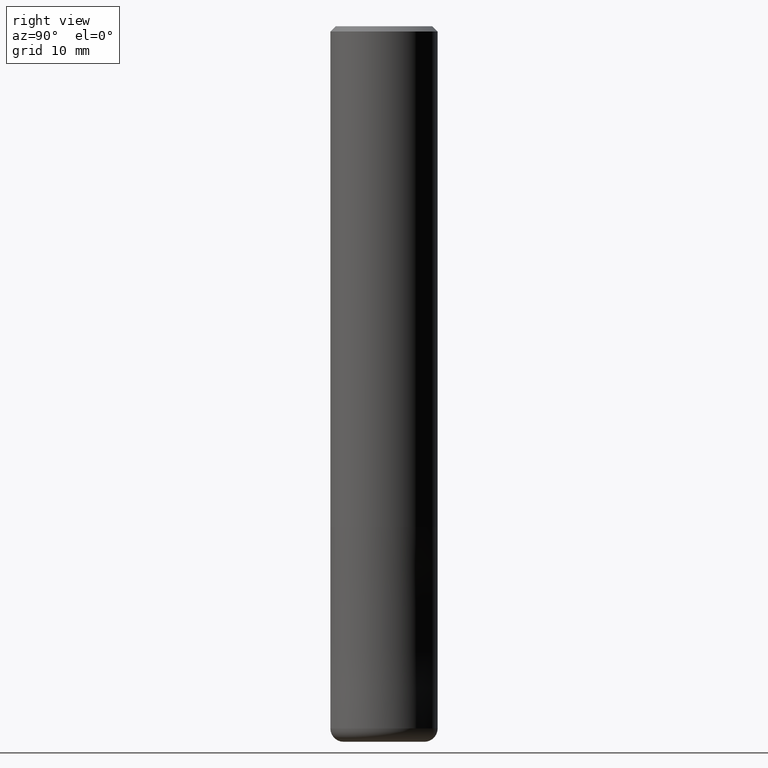
[diagram: clean part render]
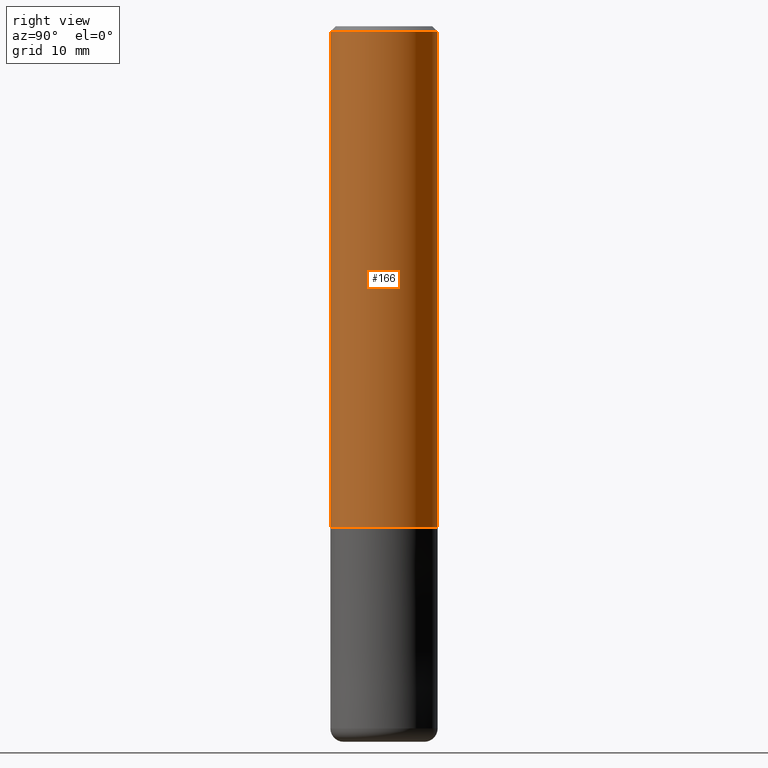
[diagram: same view with one face highlighted and labeled with its STEP entity id]
A machine part, right view. The second image highlights one B-rep face of the part: STEP entity #166.
In plain terms, the highlighted cylindrical surface (partial cylindrical patch) has radius 6 mm, axis along (-0, -0, 1).
Its self-contained STEP definition (entity closure, byte-faithful):
#110=EDGE_CURVE('',#244,#208,#271,.T.);
#138=VERTEX_POINT('',#301);
#160=EDGE_CURVE('',#244,#138,#324,.T.);
#162=EDGE_CURVE('',#202,#208,#326,.T.);
#166=ADVANCED_FACE('',(#331),#332,.T.);
#202=VERTEX_POINT('',#374);
#208=VERTEX_POINT('',#381);
#228=EDGE_CURVE('',#138,#202,#406,.T.);
#244=VERTEX_POINT('',#425);
#271=CIRCLE('',#449,6.0);
#301=CARTESIAN_POINT('',(0.0,6.0,-56.0));
#324=LINE('',#517,#518);
#326=LINE('',#521,#522);
#331=FACE_OUTER_BOUND('',#527,.T.);
#332=CYLINDRICAL_SURFACE('',#528,6.0);
#374=CARTESIAN_POINT('',(7.34763812293426E-016,-6.0,-56.0));
#381=CARTESIAN_POINT('',(7.34763812293426E-016,-6.0,-0.600000000000001));
#406=CIRCLE('',#615,6.0);
#425=CARTESIAN_POINT('',(0.0,6.0,-0.600000000000001));
#449=AXIS2_PLACEMENT_3D('',#647,#648,#649);
#517=CARTESIAN_POINT('',(-7.34763812293426E-016,6.0,-28.3));
#518=VECTOR('',#710,1.0);
#521=CARTESIAN_POINT('',(7.34763812293426E-016,-6.0,-28.3));
#522=VECTOR('',#711,1.0);
#527=EDGE_LOOP('',(#721,#722,#723,#724));
#528=AXIS2_PLACEMENT_3D('',#725,#726,#727);
#615=AXIS2_PLACEMENT_3D('',#824,#825,#826);
#647=CARTESIAN_POINT('',(0.0,0.0,-0.600000000000001));
#648=DIRECTION('',(0.0,0.0,-1.0));
#649=DIRECTION('',(0.0,1.0,0.0));
#710=DIRECTION('',(0.0,0.0,-1.0));
#711=DIRECTION('',(-0.0,-0.0,1.0));
#721=ORIENTED_EDGE('',*,*,#160,.F.);
#722=ORIENTED_EDGE('',*,*,#110,.T.);
#723=ORIENTED_EDGE('',*,*,#162,.F.);
#724=ORIENTED_EDGE('',*,*,#228,.F.);
#725=CARTESIAN_POINT('',(0.0,0.0,-28.3));
#726=DIRECTION('',(-0.0,-0.0,1.0));
#727=DIRECTION('',(0.0,1.0,0.0));
#824=CARTESIAN_POINT('',(0.0,0.0,-56.0));
#825=DIRECTION('',(0.0,0.0,-1.0));
#826=DIRECTION('',(0.0,1.0,0.0));